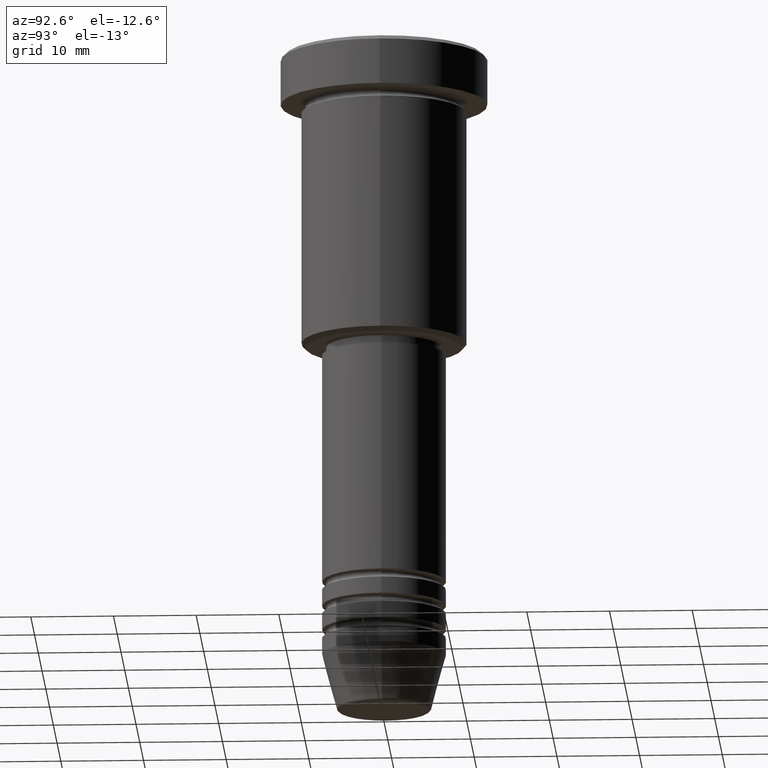
[diagram: clean part render]
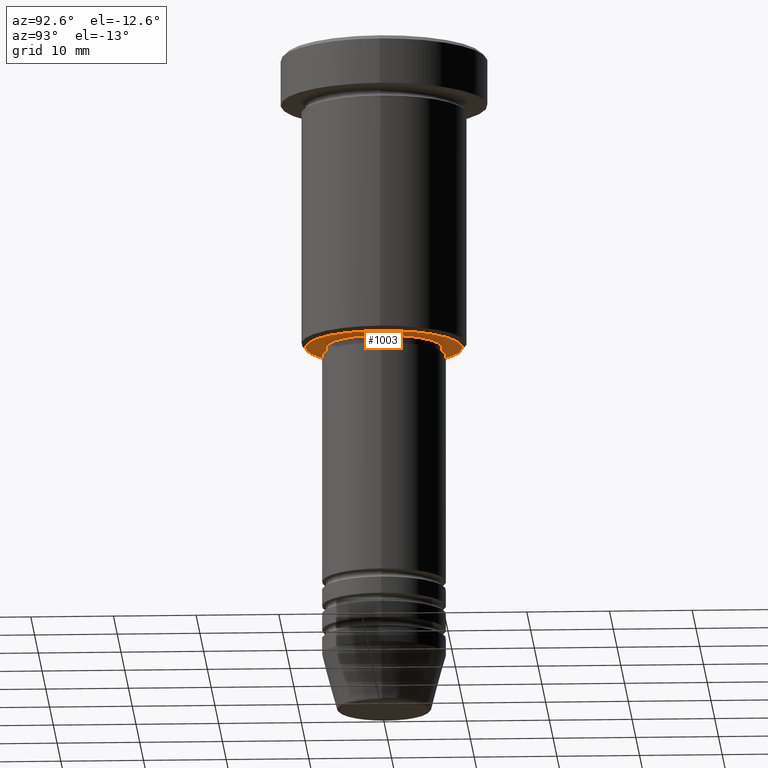
[diagram: same view with one face highlighted and labeled with its STEP entity id]
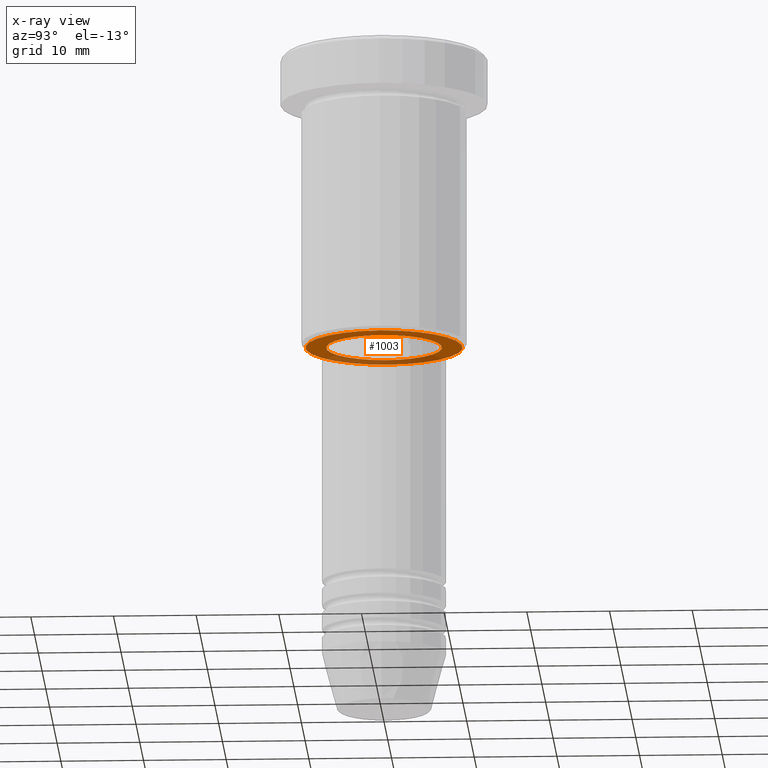
[diagram: x-ray of the same camera — body ghosted, the highlighted face saturated]
A machine part, auxiliary view. The second image highlights one B-rep face of the part: STEP entity #1003.
The next image is the same camera in x-ray: the body ghosted, the highlighted face saturated — about 28% of this face is hidden behind the body in this view.
In plain terms, the highlighted planar face has unit normal (0, 0, -1).
Its self-contained STEP definition (entity closure, byte-faithful):
#8 = DIRECTION ( 'NONE',  ( 0.000000000000000000, 0.000000000000000000, -1.000000000000000000 ) ) ;
#55 = CIRCLE ( 'NONE', #1168, 6.999999999999999112 ) ;
#79 = DIRECTION ( 'NONE',  ( -0.000000000000000000, -0.000000000000000000, 1.000000000000000000 ) ) ;
#112 = CARTESIAN_POINT ( 'NONE',  ( -9.500000000000001776, 1.194030629168669469E-15, -36.00000000000000711 ) ) ;
#134 = EDGE_CURVE ( 'NONE', #510, #622, #874, .T. ) ;
#173 = CARTESIAN_POINT ( 'NONE',  ( 0.000000000000000000, 0.000000000000000000, -36.00000000000000711 ) ) ;
#212 = CARTESIAN_POINT ( 'NONE',  ( 6.999999999999999112, 0.000000000000000000, -36.00000000000000711 ) ) ;
#266 = FACE_BOUND ( 'NONE', #971, .T. ) ;
#336 = ORIENTED_EDGE ( 'NONE', *, *, #569, .T. ) ;
#423 = EDGE_LOOP ( 'NONE', ( #336, #937 ) ) ;
#441 = DIRECTION ( 'NONE',  ( 1.000000000000000000, 0.000000000000000000, 0.000000000000000000 ) ) ;
#447 = DIRECTION ( 'NONE',  ( 0.000000000000000000, 0.000000000000000000, -1.000000000000000000 ) ) ;
#497 = VERTEX_POINT ( 'NONE', #762 ) ;
#503 = CARTESIAN_POINT ( 'NONE',  ( 0.000000000000000000, 0.000000000000000000, -36.00000000000000711 ) ) ;
#507 = AXIS2_PLACEMENT_3D ( 'NONE', #898, #79, #441 ) ;
#510 = VERTEX_POINT ( 'NONE', #863 ) ;
#540 = CARTESIAN_POINT ( 'NONE',  ( 0.000000000000000000, 10.00000000000000000, -36.00000000000000711 ) ) ;
#569 = EDGE_CURVE ( 'NONE', #497, #594, #957, .T. ) ;
#594 = VERTEX_POINT ( 'NONE', #112 ) ;
#622 = VERTEX_POINT ( 'NONE', #212 ) ;
#627 = PLANE ( 'NONE',  #998 ) ;
#631 = DIRECTION ( 'NONE',  ( -1.000000000000000000, 0.000000000000000000, -0.000000000000000000 ) ) ;
#636 = ORIENTED_EDGE ( 'NONE', *, *, #134, .T. ) ;
#682 = AXIS2_PLACEMENT_3D ( 'NONE', #503, #944, #861 ) ;
#695 = EDGE_CURVE ( 'NONE', #622, #510, #55, .T. ) ;
#762 = CARTESIAN_POINT ( 'NONE',  ( 9.500000000000001776, 0.000000000000000000, -36.00000000000000711 ) ) ;
#844 = DIRECTION ( 'NONE',  ( 1.000000000000000000, 0.000000000000000000, 0.000000000000000000 ) ) ;
#861 = DIRECTION ( 'NONE',  ( -1.000000000000000000, 0.000000000000000000, 0.000000000000000000 ) ) ;
#863 = CARTESIAN_POINT ( 'NONE',  ( -6.999999999999999112, 8.572527594031472204E-16, -36.00000000000000711 ) ) ;
#874 = CIRCLE ( 'NONE', #507, 6.999999999999999112 ) ;
#888 = ORIENTED_EDGE ( 'NONE', *, *, #695, .T. ) ;
#898 = CARTESIAN_POINT ( 'NONE',  ( 0.000000000000000000, 0.000000000000000000, -36.00000000000000711 ) ) ;
#937 = ORIENTED_EDGE ( 'NONE', *, *, #966, .T. ) ;
#944 = DIRECTION ( 'NONE',  ( 0.000000000000000000, 0.000000000000000000, -1.000000000000000000 ) ) ;
#950 = CARTESIAN_POINT ( 'NONE',  ( 0.000000000000000000, 0.000000000000000000, -36.00000000000000711 ) ) ;
#957 = CIRCLE ( 'NONE', #682, 9.500000000000001776 ) ;
#966 = EDGE_CURVE ( 'NONE', #594, #497, #1134, .T. ) ;
#971 = EDGE_LOOP ( 'NONE', ( #888, #636 ) ) ;
#998 = AXIS2_PLACEMENT_3D ( 'NONE', #540, #447, #631 ) ;
#1003 = ADVANCED_FACE ( 'NONE', ( #1091, #266 ), #627, .T. ) ;
#1086 = DIRECTION ( 'NONE',  ( -1.000000000000000000, 0.000000000000000000, 0.000000000000000000 ) ) ;
#1091 = FACE_OUTER_BOUND ( 'NONE', #423, .T. ) ;
#1120 = DIRECTION ( 'NONE',  ( -0.000000000000000000, -0.000000000000000000, 1.000000000000000000 ) ) ;
#1134 = CIRCLE ( 'NONE', #1151, 9.500000000000001776 ) ;
#1151 = AXIS2_PLACEMENT_3D ( 'NONE', #173, #8, #1086 ) ;
#1168 = AXIS2_PLACEMENT_3D ( 'NONE', #950, #1120, #844 ) ;